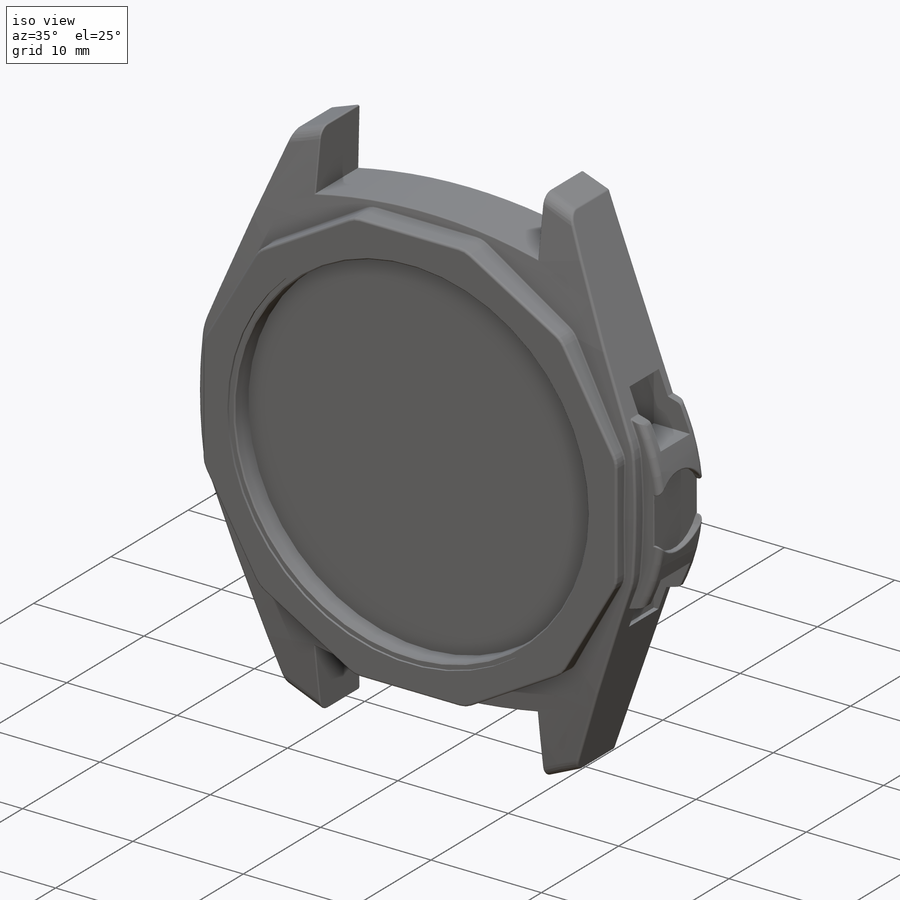
[diagram: iso view]
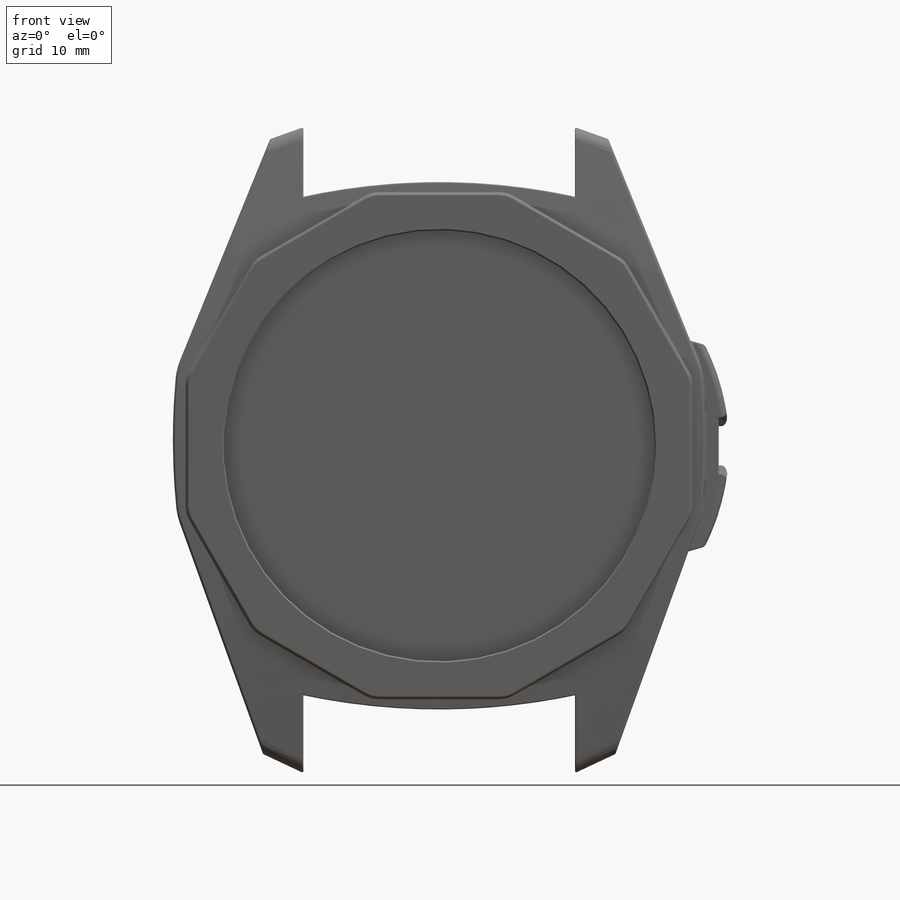
[diagram: front view]
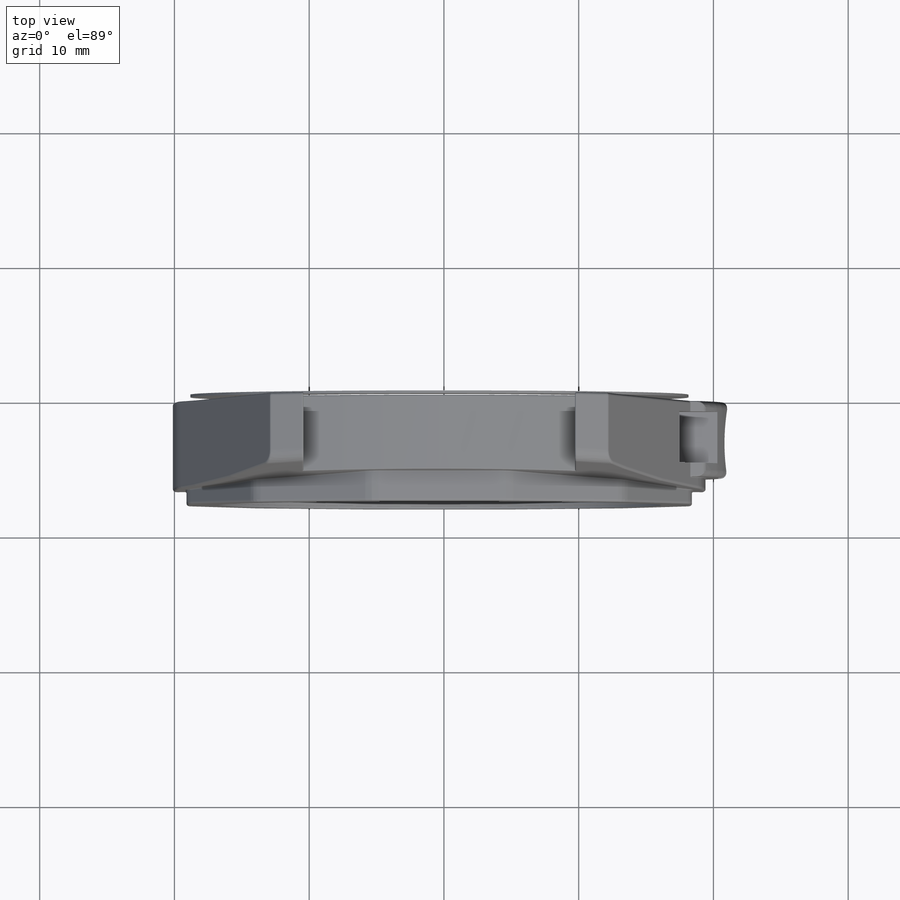
[diagram: top view]
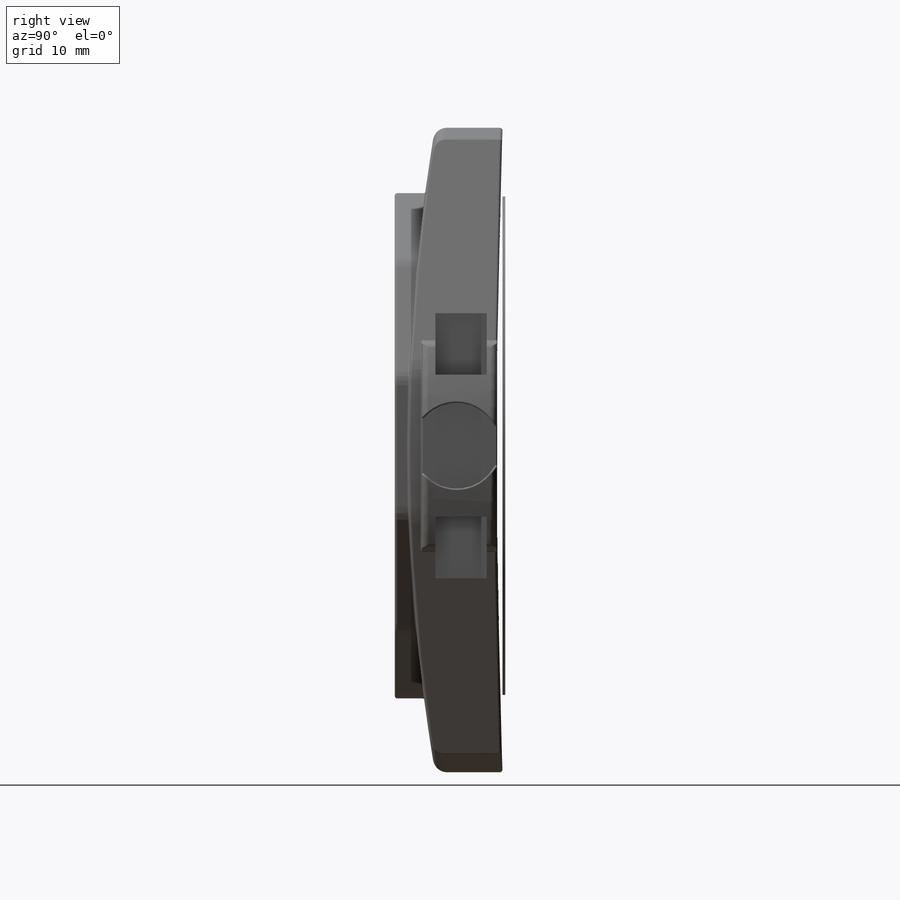
[diagram: right view]
SOLIDWORKS PART (.sldprt)
format: sldprt  version: not decoded by parser v0  size: 1,043,968 bytes
history: native  units: mm
features: sketch x12, fillet x10, cut_extrude x6, extrude x4, plane x2, material x1, chamfer x1 (+11 scaffold rows collapsed)
feature tree (47):
  scaffold x11  (default folders/planes/origin — collapsed)
  material  "Material <not specified>"
  sketch  "Sketch1"  dims[D1=~39.08633mm]
  extrude  "Boss-Extrude1"  Depth=10mm
  sketch  "Sketch2"  dims[D1=5.0mm D2=5.0mm]
  cut_extrude  "Cut-Extrude1"  Depth=64mm
  plane  "Plane1"  Offset=6mm
  sketch  "Sketch3"  dims[D1=32.0mm D2=37.5mm]
  extrude  "Boss-Extrude2"  Depth=2mm
  sketch  "Sketch4"
  cut_extrude  "Cut-Extrude2"  Depth=2mm
  fillet  "Fillet1"  Radius=0.2mm
  fillet  "Fillet2"  Radius=1mm
  sketch  "Sketch5"  dims[D1=37.0mm]
  extrude  "Boss-Extrude3"  Depth=0.2mm
  fillet  "Fillet5"  Radius=0.2mm
  fillet  "Fillet6"  Radius=5mm
  sketch  "Sketch6"  dims[D1=33.0mm]
  cut_extrude  "Cut-Extrude3"  Depth=0.2mm
  chamfer  "Chamfer1"  Distance=0.1mm Angle=45deg
  fillet  "Fillet7"  Radius=2mm
  sketch  "Sketch7"
  fillet  "Fillet8"  Radius=0.1mm
  sketch  "Sketch8"  dims[c1.D2=16.5mm c1.D1=15.0mm c2.D2=5.0mm]
  extrude  "Boss-Extrude4"  Depth=5.6mm
  fillet  "Fillet9"  Radius=0.1mm
  fillet  "Fillet10"  Radius=0.5mm
  plane  "Plane2"  Offset=26mm
  sketch  "Sketch9"
  cut_extrude  "Cut-Extrude5"  Depth=5.6mm
  sketch  "Sketch10"
  cut_extrude  "Cut-Extrude6"  Depth=9mm
  fillet  "Fillet11"  Radius=0.1mm
  sketch  "Sketch11"
  cut_extrude  "Cut-Extrude7"  Depth=1mm
  fillet  "Fillet12"  Radius=0.1mm
  sketch  "Sketch13"
decode coverage: 27 of 33 modeling features carry decoded parameters
note: ~ marks probable driven/reference dimensions
note: suppression state not decoded; provenance and decode notes live in map.json
